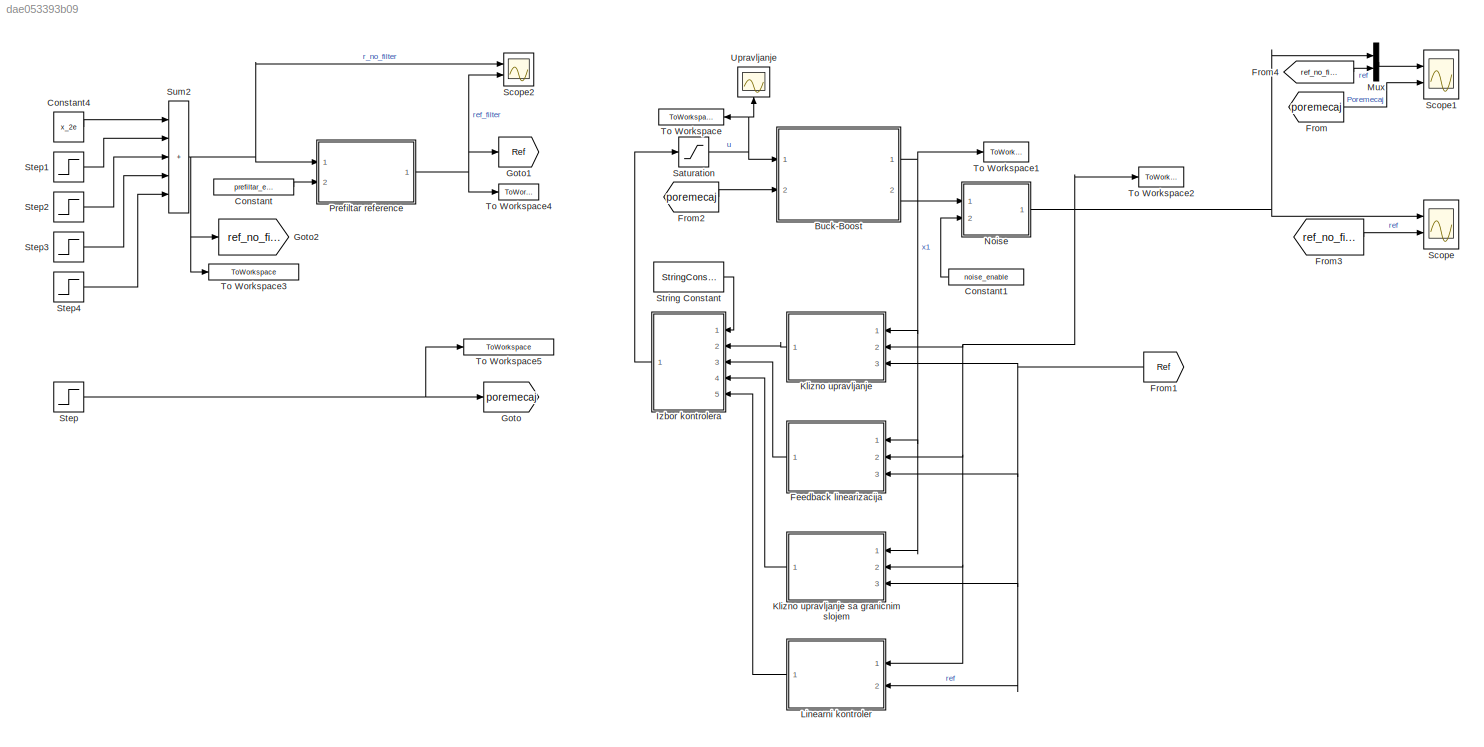
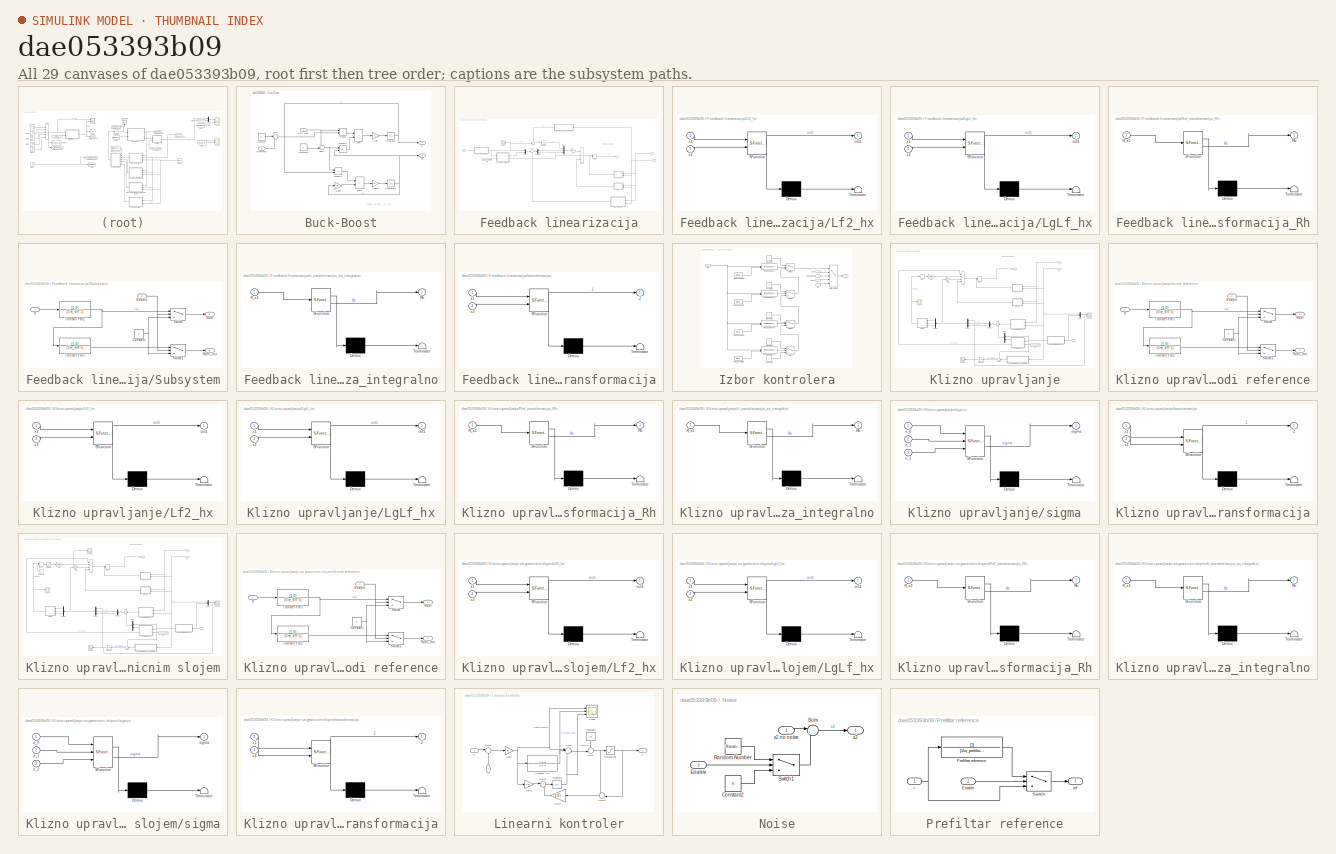
[diagram: thumbnail index - all 29 canvases of the model, root first then tree order]
MODEL slx_dae053393b09
KIND model
CONFIG AbsTol = auto
CONFIG EnableMultiTasking = off
CONFIG FixedStep = time_step
CONFIG MaxStep = auto
CONFIG MinStep = auto
CONFIG RelTol = 1e-3
CONFIG SampleTimeConstraint = Unconstrained
CONFIG Solver = FixedStepAuto
CONFIG SolverName = FixedStepAuto
CONFIG StartTime = 0.0
CONFIG StopTime = sim_duration
BLOCK [SubSystem] Buck-Boost
  Ports = [2, 2]
  RequestExecContextInheritance = off
BLOCK [Constant] Buck-Boost/Constant1
  Value = E
BLOCK [Constant] Buck-Boost/Constant2
BLOCK [Inport] Buck-Boost/Duty cycle
BLOCK [Gain] Buck-Boost/Gain
  Gain = 1/L
BLOCK [Gain] Buck-Boost/Gain1
  Gain = 1/C
BLOCK [Gain] Buck-Boost/Gain2
  Gain = 1/R
BLOCK [Integrator] Buck-Boost/Integrator
  InitialCondition = 1e-3
  Ports = [1, 1]
BLOCK [Integrator] Buck-Boost/Integrator1
  InitialCondition = -1e-3
  Ports = [1, 1]
BLOCK [Product] Buck-Boost/Product
  Ports = [2, 1]
BLOCK [Product] Buck-Boost/Product1
  Ports = [2, 1]
BLOCK [Product] Buck-Boost/Product2
  Ports = [2, 1]
BLOCK [Sum] Buck-Boost/Sum
  IconShape = rectangular
  Ports = [2, 1]
BLOCK [Sum] Buck-Boost/Sum1
  Inputs = -+|
  Ports = [2, 1]
BLOCK [Sum] Buck-Boost/Sum2
  IconShape = rectangular
  Inputs = --
  Ports = [2, 1]
BLOCK [Sum] Buck-Boost/Sum3
  Inputs = |++
  Ports = [2, 1]
BLOCK [Inport] Buck-Boost/poremecaj
  Port = 2
BLOCK [Outport] Buck-Boost/x1
BLOCK [Outport] Buck-Boost/x2
  Port = 2
BLOCK [Constant] Constant
  Value = prefiltar_enable
BLOCK [Constant] Constant1
  Value = noise_enable
BLOCK [Constant] Constant4
  Value = x_2e
BLOCK [SubSystem] Feedback linearizacija
  Ports = [3, 1]
  RequestExecContextInheritance = off
BLOCK [Demux] Feedback linearizacija/Demux
  Outputs = 2
  Ports = [1, 2]
BLOCK [Product] Feedback linearizacija/Divide
  Inputs = */
  Ports = [2, 1]
BLOCK [Constant] Feedback linearizacija/En
  Value = R_dot_enable
BLOCK [Gain] Feedback linearizacija/Gain
  Gain = K_fl
  Multiplication = Matrix(K*u)
  NameLocation = top
BLOCK [Integrator] Feedback linearizacija/Integrator
  Ports = [1, 1]
BLOCK [SubSystem] Feedback linearizacija/Lf2_hx
  ErrorFcn = Stateflow.Translate.translate
  PermitHierarchicalResolution = ExplicitOnly
  Ports = [2, 1]
  RequestExecContextInheritance = off
  SFBlockType = MATLAB Function
  TreatAsAtomicUnit = on
BLOCK [Demux] Feedback linearizacija/Lf2_hx/ Demux 
  Outputs = 1
  Ports = [1, 1]
BLOCK [S-Function] Feedback linearizacija/Lf2_hx/ SFunction 
  EnableBusSupport = on
  FunctionName = sf_sfun
  PortCounts = [2 2]
  Ports = [2, 2]
  SFcnIsStateOwnerBlock = off
  SFunctionDeploymentMode = off
  Tag = Stateflow S-Function 3
BLOCK [Terminator] Feedback linearizacija/Lf2_hx/ Terminator 
BLOCK [Outport] Feedback linearizacija/Lf2_hx/out1
BLOCK [Inport] Feedback linearizacija/Lf2_hx/x1
BLOCK [Inport] Feedback linearizacija/Lf2_hx/x2
  Port = 2
BLOCK [SubSystem] Feedback linearizacija/LgLf_hx
  ErrorFcn = Stateflow.Translate.translate
  PermitHierarchicalResolution = ExplicitOnly
  Ports = [2, 1]
  RequestExecContextInheritance = off
  SFBlockType = MATLAB Function
  TreatAsAtomicUnit = on
BLOCK [Demux] Feedback linearizacija/LgLf_hx/ Demux 
  Outputs = 1
  Ports = [1, 1]
BLOCK [S-Function] Feedback linearizacija/LgLf_hx/ SFunction 
  EnableBusSupport = on
  FunctionName = sf_sfun
  PortCounts = [2 2]
  Ports = [2, 2]
  SFcnIsStateOwnerBlock = off
  SFunctionDeploymentMode = off
  Tag = Stateflow S-Function 1
BLOCK [Terminator] Feedback linearizacija/LgLf_hx/ Terminator 
BLOCK [Outport] Feedback linearizacija/LgLf_hx/out1
BLOCK [Inport] Feedback linearizacija/LgLf_hx/x1
BLOCK [Inport] Feedback linearizacija/LgLf_hx/x2
  Port = 2
BLOCK [Mux] Feedback linearizacija/Mux
  DisplayOption = bar
  Inputs = 2
  Ports = [2, 1]
BLOCK [Mux] Feedback linearizacija/Mux1
  DisplayOption = bar
  Inputs = 3
  Ports = [3, 1]
BLOCK [Inport] Feedback linearizacija/R
  Port = 3
BLOCK [Scope] Feedback linearizacija/Ref h
  Floating = off
  NameLocation = top
  NumInputPorts = 1
  Ports = [1]
  ScopeSpecificationString = Simulink.scopes.TimeScopeBlockCfg('CurrentConfiguration', extmgr.ConfigurationSet(extmgr.Configuration('Core','General UI',true),extmgr.Configuration('Core','Source UI',true),extmgr.Configuration('Sources','WiredSimulink',true,'DataLoggingVariableName','ScopeData1'),extmgr.Configuration('Visuals','Time Domain',true,'SerializedDisplays',{struct('MinYLimReal','-0.64304','MaxYLimReal','0.6238','YLabe...<+1358ch>
BLOCK [SubSystem] Feedback linearizacija/Ref_transformacija_Rh
  ErrorFcn = Stateflow.Translate.translate
  PermitHierarchicalResolution = ExplicitOnly
  Ports = [1, 1]
  RequestExecContextInheritance = off
  SFBlockType = MATLAB Function
  TreatAsAtomicUnit = on
BLOCK [Demux] Feedback linearizacija/Ref_transformacija_Rh/ Demux 
  Outputs = 1
  Ports = [1, 1]
BLOCK [S-Function] Feedback linearizacija/Ref_transformacija_Rh/ SFunction 
  EnableBusSupport = on
  FunctionName = sf_sfun
  PortCounts = [1 2]
  Ports = [1, 2]
  SFcnIsStateOwnerBlock = off
  SFunctionDeploymentMode = off
  Tag = Stateflow S-Function 4
BLOCK [Terminator] Feedback linearizacija/Ref_transformacija_Rh/ Terminator 
BLOCK [Inport] Feedback linearizacija/Ref_transformacija_Rh/R_x2
BLOCK [Outport] Feedback linearizacija/Ref_transformacija_Rh/Rh
BLOCK [SubSystem] Feedback linearizacija/Subsystem
  Ports = [2, 2]
  RequestExecContextInheritance = off
BLOCK [Constant] Feedback linearizacija/Subsystem/Constant
  Value = 0
BLOCK [Inport] Feedback linearizacija/Subsystem/Enable
  NameLocation = top
  Port = 2
BLOCK [Inport] Feedback linearizacija/Subsystem/R
BLOCK [Outport] Feedback linearizacija/Subsystem/Rdot
BLOCK [Outport] Feedback linearizacija/Subsystem/Rdot_dot
  Port = 2
BLOCK [Switch] Feedback linearizacija/Subsystem/Switch
  Criteria = u2 ~= 0
  InputSameDT = off
  SaturateOnIntegerOverflow = off
BLOCK [Switch] Feedback linearizacija/Subsystem/Switch1
  Criteria = u2 ~= 0
  InputSameDT = off
  SaturateOnIntegerOverflow = off
BLOCK [TransferFcn] Feedback linearizacija/Subsystem/Transfer Fcn1
  Denominator = [1/w_diff 1]
  Numerator = [1 0]
BLOCK [TransferFcn] Feedback linearizacija/Subsystem/Transfer Fcn2
  Denominator = [1/w_diff 1]
  Numerator = [1 0]
BLOCK [Sum] Feedback linearizacija/Sum
  IconShape = rectangular
  Inputs = -+-
  Ports = [3, 1]
BLOCK [Sum] Feedback linearizacija/Sum1
  Inputs = |-+
  Ports = [2, 1]
BLOCK [Sum] Feedback linearizacija/Sum4
  Inputs = +-|
  Ports = [2, 1]
BLOCK [SubSystem] Feedback linearizacija/h_transformacija_za_integralno
  ErrorFcn = Stateflow.Translate.translate
  PermitHierarchicalResolution = ExplicitOnly
  Ports = [1, 1]
  RequestExecContextInheritance = off
  SFBlockType = MATLAB Function
  TreatAsAtomicUnit = on
BLOCK [Demux] Feedback linearizacija/h_transformacija_za_integralno/ Demux 
  Outputs = 1
  Ports = [1, 1]
BLOCK [S-Function] Feedback linearizacija/h_transformacija_za_integralno/ SFunction 
  EnableBusSupport = on
  FunctionName = sf_sfun
  PortCounts = [1 2]
  Ports = [1, 2]
  SFcnIsStateOwnerBlock = off
  SFunctionDeploymentMode = off
  Tag = Stateflow S-Function 5
BLOCK [Terminator] Feedback linearizacija/h_transformacija_za_integralno/ Terminator 
BLOCK [Inport] Feedback linearizacija/h_transformacija_za_integralno/R_x2
BLOCK [Outport] Feedback linearizacija/h_transformacija_za_integralno/Rh
BLOCK [SubSystem] Feedback linearizacija/transformacija
  ErrorFcn = Stateflow.Translate.translate
  PermitHierarchicalResolution = ExplicitOnly
  Ports = [2, 1]
  RequestExecContextInheritance = off
  SFBlockType = MATLAB Function
  TreatAsAtomicUnit = on
BLOCK [Demux] Feedback linearizacija/transformacija/ Demux 
  Outputs = 1
  Ports = [1, 1]
BLOCK [S-Function] Feedback linearizacija/transformacija/ SFunction 
  EnableBusSupport = on
  FunctionName = sf_sfun
  PortCounts = [2 2]
  Ports = [2, 2]
  SFcnIsStateOwnerBlock = off
  SFunctionDeploymentMode = off
  Tag = Stateflow S-Function 2
BLOCK [Terminator] Feedback linearizacija/transformacija/ Terminator 
BLOCK [Outport] Feedback linearizacija/transformacija/Z
BLOCK [Inport] Feedback linearizacija/transformacija/x1
BLOCK [Inport] Feedback linearizacija/transformacija/x2
  Port = 2
BLOCK [Outport] Feedback linearizacija/u
BLOCK [Inport] Feedback linearizacija/x1
BLOCK [Inport] Feedback linearizacija/x2
  Port = 2
BLOCK [From] From
  GotoTag = poremecaj
BLOCK [From] From1
  GotoTag = Ref
  TagVisibility = global
BLOCK [From] From2
  GotoTag = poremecaj
BLOCK [From] From3
  GotoTag = ref_no_filter
BLOCK [From] From4
  GotoTag = ref_no_filter
BLOCK [Goto] Goto
  GotoTag = poremecaj
BLOCK [Goto] Goto1
  GotoTag = Ref
  TagVisibility = global
BLOCK [Goto] Goto2
  GotoTag = ref_no_filter
BLOCK [SubSystem] Izbor kontrolera
  Ports = [5, 1]
  RequestExecContextInheritance = off
BLOCK [Constant] Izbor kontrolera/Constant1
BLOCK [Constant] Izbor kontrolera/Constant2
  Value = 2
BLOCK [Constant] Izbor kontrolera/Constant3
  Value = 4
BLOCK [Constant] Izbor kontrolera/Constant4
  Value = 3
BLOCK [Constant] Izbor kontrolera/Constant6
  Value = 0
BLOCK [MultiPortSwitch] Izbor kontrolera/Multiport Switch
  InputSameDT = off
  Inputs = 4
  Ports = [5, 1]
  SaturateOnIntegerOverflow = off
BLOCK [StringCompare] Izbor kontrolera/String Compare
BLOCK [StringCompare] Izbor kontrolera/String Compare1
BLOCK [StringCompare] Izbor kontrolera/String Compare2
BLOCK [StringCompare] Izbor kontrolera/String Compare3
BLOCK [StringConstant] Izbor kontrolera/String Constant1
  String = "smc"
BLOCK [StringConstant] Izbor kontrolera/String Constant2
  String = "bl smc"
BLOCK [StringConstant] Izbor kontrolera/String Constant3
  String = "fbl"
BLOCK [StringConstant] Izbor kontrolera/String Constant4
  String = "lin"
BLOCK [Switch] Izbor kontrolera/Switch1
  Criteria = u2 > Threshold
  InputSameDT = off
  SaturateOnIntegerOverflow = off
BLOCK [Switch] Izbor kontrolera/Switch2
  Criteria = u2 > Threshold
  InputSameDT = off
  SaturateOnIntegerOverflow = off
BLOCK [Switch] Izbor kontrolera/Switch3
  Criteria = u2 > Threshold
  InputSameDT = off
  SaturateOnIntegerOverflow = off
BLOCK [Switch] Izbor kontrolera/Switch4
  Criteria = u2 > Threshold
  InputSameDT = off
  SaturateOnIntegerOverflow = off
BLOCK [Inport] Izbor kontrolera/bl smc
  NameLocation = left
  Port = 4
BLOCK [Inport] Izbor kontrolera/feedback lin
  NameLocation = left
  Port = 3
BLOCK [Inport] Izbor kontrolera/ime
BLOCK [Inport] Izbor kontrolera/lin
  NameLocation = left
  Port = 5
BLOCK [Inport] Izbor kontrolera/smc
  NameLocation = left
  Port = 2
BLOCK [Outport] Izbor kontrolera/u
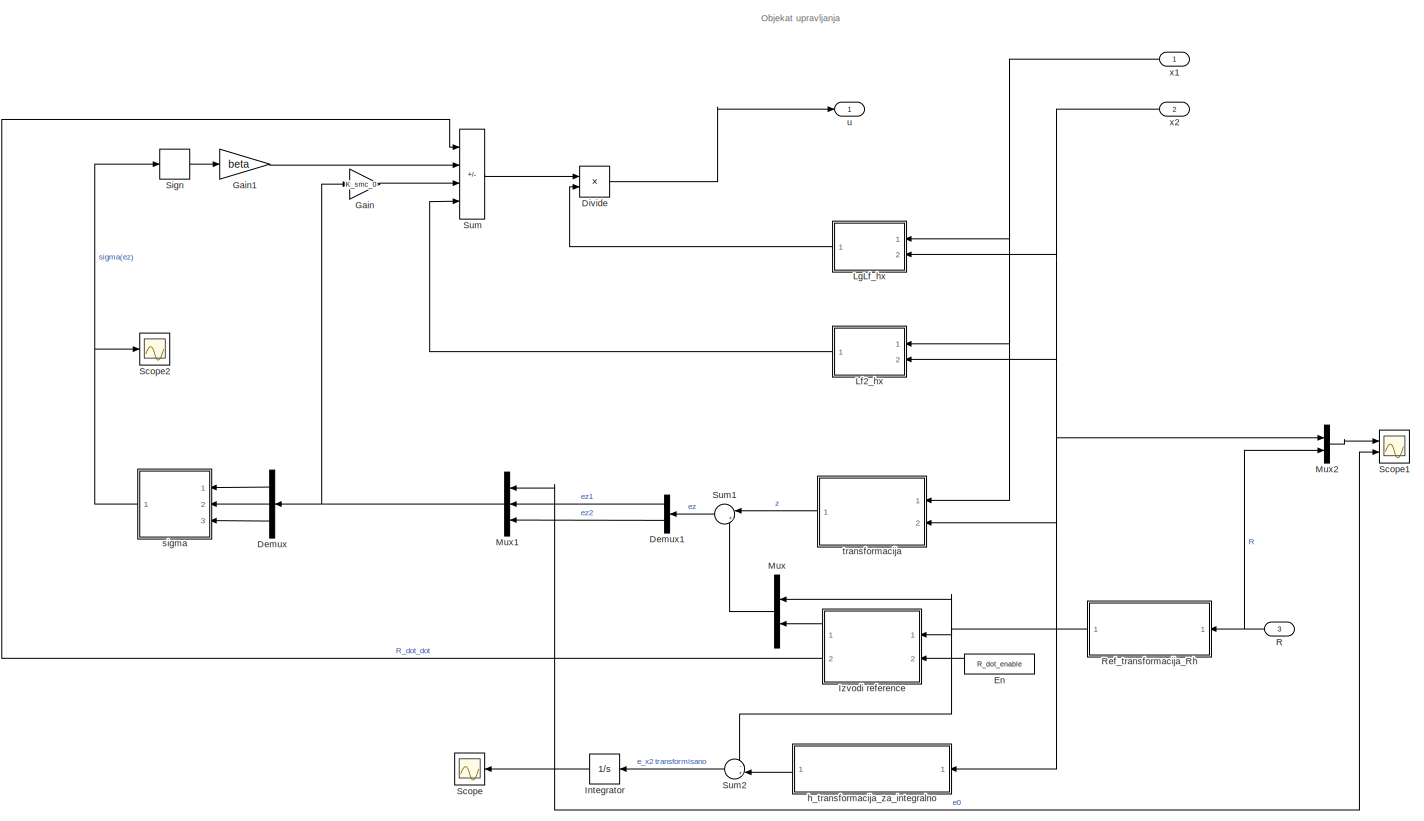
[diagram: Klizno upravljanje - part 1/1, most of the canvas]
BLOCK [SubSystem] Klizno upravljanje
  Ports = [3, 1]
  RequestExecContextInheritance = off
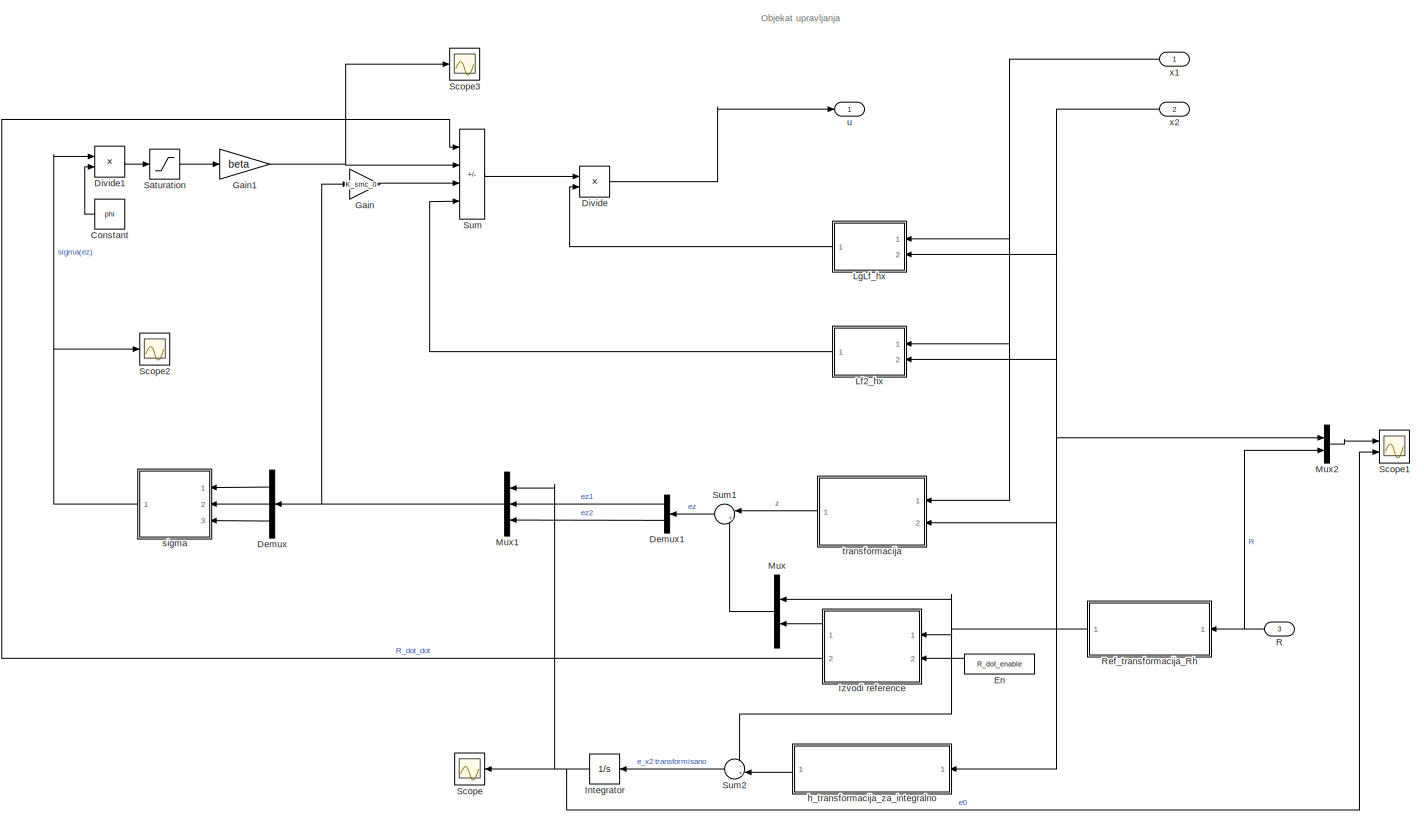
[diagram: Klizno upravljanje sa granicnim slojem - part 1/1, most of the canvas]
BLOCK [SubSystem] Klizno upravljanje sa granicnim slojem
  Ports = [3, 1]
  RequestExecContextInheritance = off
BLOCK [Constant] Klizno upravljanje sa granicnim slojem/Constant
  Value = phi
BLOCK [Demux] Klizno upravljanje sa granicnim slojem/Demux
  Outputs = 3
  Ports = [1, 3]
BLOCK [Demux] Klizno upravljanje sa granicnim slojem/Demux1
  Outputs = 2
  Ports = [1, 2]
BLOCK [Product] Klizno upravljanje sa granicnim slojem/Divide
  Inputs = */
  Ports = [2, 1]
BLOCK [Product] Klizno upravljanje sa granicnim slojem/Divide1
  Inputs = */
  Ports = [2, 1]
BLOCK [Constant] Klizno upravljanje sa granicnim slojem/En
  Value = R_dot_enable
BLOCK [Gain] Klizno upravljanje sa granicnim slojem/Gain
  Gain = K_smc_0
  Multiplication = Matrix(K*u)
  NameLocation = top
BLOCK [Gain] Klizno upravljanje sa granicnim slojem/Gain1
  Gain = beta
BLOCK [Integrator] Klizno upravljanje sa granicnim slojem/Integrator
  Ports = [1, 1]
BLOCK [SubSystem] Klizno upravljanje sa granicnim slojem/Izvodi reference
  Ports = [2, 2]
  RequestExecContextInheritance = off
BLOCK [Constant] Klizno upravljanje sa granicnim slojem/Izvodi reference/Constant
  Value = 0
BLOCK [Inport] Klizno upravljanje sa granicnim slojem/Izvodi reference/Enable
  NameLocation = top
  Port = 2
BLOCK [Inport] Klizno upravljanje sa granicnim slojem/Izvodi reference/R
BLOCK [Outport] Klizno upravljanje sa granicnim slojem/Izvodi reference/Rdot
BLOCK [Outport] Klizno upravljanje sa granicnim slojem/Izvodi reference/Rdot_dot
  Port = 2
BLOCK [Switch] Klizno upravljanje sa granicnim slojem/Izvodi reference/Switch
  Criteria = u2 ~= 0
  InputSameDT = off
  SaturateOnIntegerOverflow = off
BLOCK [Switch] Klizno upravljanje sa granicnim slojem/Izvodi reference/Switch1
  Criteria = u2 ~= 0
  InputSameDT = off
  SaturateOnIntegerOverflow = off
BLOCK [TransferFcn] Klizno upravljanje sa granicnim slojem/Izvodi reference/Transfer Fcn1
  Denominator = [1/w_diff 1]
  Numerator = [1 0]
BLOCK [TransferFcn] Klizno upravljanje sa granicnim slojem/Izvodi reference/Transfer Fcn2
  Denominator = [1/w_diff 1]
  Numerator = [1 0]
BLOCK [SubSystem] Klizno upravljanje sa granicnim slojem/Lf2_hx
  ErrorFcn = Stateflow.Translate.translate
  PermitHierarchicalResolution = ExplicitOnly
  Ports = [2, 1]
  RequestExecContextInheritance = off
  SFBlockType = MATLAB Function
  TreatAsAtomicUnit = on
BLOCK [Demux] Klizno upravljanje sa granicnim slojem/Lf2_hx/ Demux 
  Outputs = 1
  Ports = [1, 1]
BLOCK [S-Function] Klizno upravljanje sa granicnim slojem/Lf2_hx/ SFunction 
  EnableBusSupport = on
  FunctionName = sf_sfun
  PortCounts = [2 2]
  Ports = [2, 2]
  SFcnIsStateOwnerBlock = off
  SFunctionDeploymentMode = off
  Tag = Stateflow S-Function 12
BLOCK [Terminator] Klizno upravljanje sa granicnim slojem/Lf2_hx/ Terminator 
BLOCK [Outport] Klizno upravljanje sa granicnim slojem/Lf2_hx/out1
BLOCK [Inport] Klizno upravljanje sa granicnim slojem/Lf2_hx/x1
BLOCK [Inport] Klizno upravljanje sa granicnim slojem/Lf2_hx/x2
  Port = 2
BLOCK [SubSystem] Klizno upravljanje sa granicnim slojem/LgLf_hx
  ErrorFcn = Stateflow.Translate.translate
  PermitHierarchicalResolution = ExplicitOnly
  Ports = [2, 1]
  RequestExecContextInheritance = off
  SFBlockType = MATLAB Function
  TreatAsAtomicUnit = on
BLOCK [Demux] Klizno upravljanje sa granicnim slojem/LgLf_hx/ Demux 
  Outputs = 1
  Ports = [1, 1]
BLOCK [S-Function] Klizno upravljanje sa granicnim slojem/LgLf_hx/ SFunction 
  EnableBusSupport = on
  FunctionName = sf_sfun
  PortCounts = [2 2]
  Ports = [2, 2]
  SFcnIsStateOwnerBlock = off
  SFunctionDeploymentMode = off
  Tag = Stateflow S-Function 13
BLOCK [Terminator] Klizno upravljanje sa granicnim slojem/LgLf_hx/ Terminator 
BLOCK [Outport] Klizno upravljanje sa granicnim slojem/LgLf_hx/out1
BLOCK [Inport] Klizno upravljanje sa granicnim slojem/LgLf_hx/x1
BLOCK [Inport] Klizno upravljanje sa granicnim slojem/LgLf_hx/x2
  Port = 2
BLOCK [Mux] Klizno upravljanje sa granicnim slojem/Mux
  DisplayOption = bar
  Inputs = 2
  Ports = [2, 1]
BLOCK [Mux] Klizno upravljanje sa granicnim slojem/Mux1
  DisplayOption = bar
  Inputs = 3
  Ports = [3, 1]
BLOCK [Mux] Klizno upravljanje sa granicnim slojem/Mux2
  DisplayOption = bar
  Inputs = 2
  Ports = [2, 1]
BLOCK [Inport] Klizno upravljanje sa granicnim slojem/R
  NameLocation = top
  Port = 3
BLOCK [SubSystem] Klizno upravljanje sa granicnim slojem/Ref_transformacija_Rh
  ErrorFcn = Stateflow.Translate.translate
  PermitHierarchicalResolution = ExplicitOnly
  Ports = [1, 1]
  RequestExecContextInheritance = off
  SFBlockType = MATLAB Function
  TreatAsAtomicUnit = on
BLOCK [Demux] Klizno upravljanje sa granicnim slojem/Ref_transformacija_Rh/ Demux 
  Outputs = 1
  Ports = [1, 1]
BLOCK [S-Function] Klizno upravljanje sa granicnim slojem/Ref_transformacija_Rh/ SFunction 
  EnableBusSupport = on
  FunctionName = sf_sfun
  PortCounts = [1 2]
  Ports = [1, 2]
  SFcnIsStateOwnerBlock = off
  SFunctionDeploymentMode = off
  Tag = Stateflow S-Function 14
BLOCK [Terminator] Klizno upravljanje sa granicnim slojem/Ref_transformacija_Rh/ Terminator 
BLOCK [Inport] Klizno upravljanje sa granicnim slojem/Ref_transformacija_Rh/R_x2
BLOCK [Outport] Klizno upravljanje sa granicnim slojem/Ref_transformacija_Rh/Rh
BLOCK [Saturate] Klizno upravljanje sa granicnim slojem/Saturation
  LowerLimit = -1
  UpperLimit = 1
BLOCK [Scope] Klizno upravljanje sa granicnim slojem/Scope
  Floating = off
  NumInputPorts = 1
  Ports = [1]
  ScopeSpecificationString = Simulink.scopes.TimeScopeBlockCfg('CurrentConfiguration', extmgr.ConfigurationSet(extmgr.Configuration('Core','General UI',true),extmgr.Configuration('Core','Source UI',true),extmgr.Configuration('Sources','WiredSimulink',true,'DataLoggingVariableName','ScopeData1'),extmgr.Configuration('Visuals','Time Domain',true,'SerializedDisplays',{struct('MinYLimReal','-0.00121','MaxYLimReal','0.00076','YLab...<+1419ch>
BLOCK [Scope] Klizno upravljanje sa granicnim slojem/Scope1
  Floating = off
  NumInputPorts = 2
  Ports = [2]
  ScopeSpecificationString = Simulink.scopes.TimeScopeBlockCfg('CurrentConfiguration', extmgr.ConfigurationSet(extmgr.Configuration('Core','General UI',true),extmgr.Configuration('Core','Source UI',true),extmgr.Configuration('Sources','WiredSimulink',true,'DataLoggingVariableName','ScopeData2'),extmgr.Configuration('Visuals','Time Domain',true,'SerializedDisplays',{struct('MinYLimReal','-40.02508','MaxYLimReal','4.44723','YLa...<+2080ch>
BLOCK [Scope] Klizno upravljanje sa granicnim slojem/Scope2
  Floating = off
  NumInputPorts = 1
  Ports = [1]
  ScopeSpecificationString = Simulink.scopes.TimeScopeBlockCfg('CurrentConfiguration', extmgr.ConfigurationSet(extmgr.Configuration('Core','General UI',true),extmgr.Configuration('Core','Source UI',true),extmgr.Configuration('Sources','WiredSimulink',true,'DataLoggingVariableName','ScopeData3'),extmgr.Configuration('Visuals','Time Domain',true,'SerializedDisplays',{struct('MinYLimReal','-239.05096','MaxYLimReal','1747.78963',...<+1430ch>
BLOCK [Scope] Klizno upravljanje sa granicnim slojem/Scope3
  Floating = off
  NumInputPorts = 1
  Ports = [1]
  ScopeSpecificationString = Simulink.scopes.TimeScopeBlockCfg('CurrentConfiguration', extmgr.ConfigurationSet(extmgr.Configuration('Core','General UI',true),extmgr.Configuration('Core','Source UI',true),extmgr.Configuration('Sources','WiredSimulink',true,'DataLoggingVariableName','ScopeData1'),extmgr.Configuration('Visuals','Time Domain',true,'SerializedDisplays',{struct('MinYLimReal','-12500.00000','MaxYLimReal','12500.0000...<+1419ch>
BLOCK [Sum] Klizno upravljanje sa granicnim slojem/Sum
  IconShape = rectangular
  Inputs = +---
  Ports = [4, 1]
BLOCK [Sum] Klizno upravljanje sa granicnim slojem/Sum1
  Inputs = |+-
  Ports = [2, 1]
BLOCK [Sum] Klizno upravljanje sa granicnim slojem/Sum2
  Inputs = -+|
  Ports = [2, 1]
BLOCK [SubSystem] Klizno upravljanje sa granicnim slojem/h_transformacija_za_integralno
  ErrorFcn = Stateflow.Translate.translate
  PermitHierarchicalResolution = ExplicitOnly
  Ports = [1, 1]
  RequestExecContextInheritance = off
  SFBlockType = MATLAB Function
  TreatAsAtomicUnit = on
BLOCK [Demux] Klizno upravljanje sa granicnim slojem/h_transformacija_za_integralno/ Demux 
  Outputs = 1
  Ports = [1, 1]
BLOCK [S-Function] Klizno upravljanje sa granicnim slojem/h_transformacija_za_integralno/ SFunction 
  EnableBusSupport = on
  FunctionName = sf_sfun
  PortCounts = [1 2]
  Ports = [1, 2]
  SFcnIsStateOwnerBlock = off
  SFunctionDeploymentMode = off
  Tag = Stateflow S-Function 15
BLOCK [Terminator] Klizno upravljanje sa granicnim slojem/h_transformacija_za_integralno/ Terminator 
BLOCK [Inport] Klizno upravljanje sa granicnim slojem/h_transformacija_za_integralno/R_x2
BLOCK [Outport] Klizno upravljanje sa granicnim slojem/h_transformacija_za_integralno/Rh
BLOCK [SubSystem] Klizno upravljanje sa granicnim slojem/sigma
  ErrorFcn = Stateflow.Translate.translate
  PermitHierarchicalResolution = ExplicitOnly
  Ports = [3, 1]
  RequestExecContextInheritance = off
  SFBlockType = MATLAB Function
  TreatAsAtomicUnit = on
BLOCK [Demux] Klizno upravljanje sa granicnim slojem/sigma/ Demux 
  Outputs = 1
  Ports = [1, 1]
BLOCK [S-Function] Klizno upravljanje sa granicnim slojem/sigma/ SFunction 
  EnableBusSupport = on
  FunctionName = sf_sfun
  PortCounts = [3 2]
  Ports = [3, 2]
  SFcnIsStateOwnerBlock = off
  SFunctionDeploymentMode = off
  Tag = Stateflow S-Function 16
BLOCK [Terminator] Klizno upravljanje sa granicnim slojem/sigma/ Terminator 
BLOCK [Inport] Klizno upravljanje sa granicnim slojem/sigma/e_0
BLOCK [Inport] Klizno upravljanje sa granicnim slojem/sigma/e_1
  Port = 2
BLOCK [Inport] Klizno upravljanje sa granicnim slojem/sigma/e_2
  Port = 3
BLOCK [Outport] Klizno upravljanje sa granicnim slojem/sigma/sigma
BLOCK [SubSystem] Klizno upravljanje sa granicnim slojem/transformacija
  ErrorFcn = Stateflow.Translate.translate
  PermitHierarchicalResolution = ExplicitOnly
  Ports = [2, 1]
  RequestExecContextInheritance = off
  SFBlockType = MATLAB Function
  TreatAsAtomicUnit = on
BLOCK [Demux] Klizno upravljanje sa granicnim slojem/transformacija/ Demux 
  Outputs = 1
  Ports = [1, 1]
BLOCK [S-Function] Klizno upravljanje sa granicnim slojem/transformacija/ SFunction 
  EnableBusSupport = on
  FunctionName = sf_sfun
  PortCounts = [2 2]
  Ports = [2, 2]
  SFcnIsStateOwnerBlock = off
  SFunctionDeploymentMode = off
  Tag = Stateflow S-Function 17
BLOCK [Terminator] Klizno upravljanje sa granicnim slojem/transformacija/ Terminator 
BLOCK [Outport] Klizno upravljanje sa granicnim slojem/transformacija/Z
BLOCK [Inport] Klizno upravljanje sa granicnim slojem/transformacija/x1
BLOCK [Inport] Klizno upravljanje sa granicnim slojem/transformacija/x2
  Port = 2
BLOCK [Outport] Klizno upravljanje sa granicnim slojem/u
BLOCK [Inport] Klizno upravljanje sa granicnim slojem/x1
BLOCK [Inport] Klizno upravljanje sa granicnim slojem/x2
  Port = 2
BLOCK [Demux] Klizno upravljanje/Demux
  Outputs = 3
  Ports = [1, 3]
BLOCK [Demux] Klizno upravljanje/Demux1
  Outputs = 2
  Ports = [1, 2]
BLOCK [Product] Klizno upravljanje/Divide
  Inputs = */
  Ports = [2, 1]
BLOCK [Constant] Klizno upravljanje/En
  Value = R_dot_enable
BLOCK [Gain] Klizno upravljanje/Gain
  Gain = K_smc_0
  Multiplication = Matrix(K*u)
  NameLocation = top
BLOCK [Gain] Klizno upravljanje/Gain1
  Gain = beta
BLOCK [Integrator] Klizno upravljanje/Integrator
  Ports = [1, 1]
BLOCK [SubSystem] Klizno upravljanje/Izvodi reference
  Ports = [2, 2]
  RequestExecContextInheritance = off
BLOCK [Constant] Klizno upravljanje/Izvodi reference/Constant
  Value = 0
BLOCK [Inport] Klizno upravljanje/Izvodi reference/Enable
  NameLocation = top
  Port = 2
BLOCK [Inport] Klizno upravljanje/Izvodi reference/R
BLOCK [Outport] Klizno upravljanje/Izvodi reference/Rdot
BLOCK [Outport] Klizno upravljanje/Izvodi reference/Rdot_dot
  Port = 2
BLOCK [Switch] Klizno upravljanje/Izvodi reference/Switch
  Criteria = u2 ~= 0
  InputSameDT = off
  SaturateOnIntegerOverflow = off
BLOCK [Switch] Klizno upravljanje/Izvodi reference/Switch1
  Criteria = u2 ~= 0
  InputSameDT = off
  SaturateOnIntegerOverflow = off
BLOCK [TransferFcn] Klizno upravljanje/Izvodi reference/Transfer Fcn1
  Denominator = [1/w_diff 1]
  Numerator = [1 0]
BLOCK [TransferFcn] Klizno upravljanje/Izvodi reference/Transfer Fcn2
  Denominator = [1/w_diff 1]
  Numerator = [1 0]
BLOCK [SubSystem] Klizno upravljanje/Lf2_hx
  ErrorFcn = Stateflow.Translate.translate
  PermitHierarchicalResolution = ExplicitOnly
  Ports = [2, 1]
  RequestExecContextInheritance = off
  SFBlockType = MATLAB Function
  TreatAsAtomicUnit = on
BLOCK [Demux] Klizno upravljanje/Lf2_hx/ Demux 
  Outputs = 1
  Ports = [1, 1]
BLOCK [S-Function] Klizno upravljanje/Lf2_hx/ SFunction 
  EnableBusSupport = on
  FunctionName = sf_sfun
  PortCounts = [2 2]
  Ports = [2, 2]
  SFcnIsStateOwnerBlock = off
  SFunctionDeploymentMode = off
  Tag = Stateflow S-Function 8
BLOCK [Terminator] Klizno upravljanje/Lf2_hx/ Terminator 
BLOCK [Outport] Klizno upravljanje/Lf2_hx/out1
BLOCK [Inport] Klizno upravljanje/Lf2_hx/x1
BLOCK [Inport] Klizno upravljanje/Lf2_hx/x2
  Port = 2
BLOCK [SubSystem] Klizno upravljanje/LgLf_hx
  ErrorFcn = Stateflow.Translate.translate
  PermitHierarchicalResolution = ExplicitOnly
  Ports = [2, 1]
  RequestExecContextInheritance = off
  SFBlockType = MATLAB Function
  TreatAsAtomicUnit = on
BLOCK [Demux] Klizno upravljanje/LgLf_hx/ Demux 
  Outputs = 1
  Ports = [1, 1]
BLOCK [S-Function] Klizno upravljanje/LgLf_hx/ SFunction 
  EnableBusSupport = on
  FunctionName = sf_sfun
  PortCounts = [2 2]
  Ports = [2, 2]
  SFcnIsStateOwnerBlock = off
  SFunctionDeploymentMode = off
  Tag = Stateflow S-Function 7
BLOCK [Terminator] Klizno upravljanje/LgLf_hx/ Terminator 
BLOCK [Outport] Klizno upravljanje/LgLf_hx/out1
BLOCK [Inport] Klizno upravljanje/LgLf_hx/x1
BLOCK [Inport] Klizno upravljanje/LgLf_hx/x2
  Port = 2
BLOCK [Mux] Klizno upravljanje/Mux
  DisplayOption = bar
  Inputs = 2
  Ports = [2, 1]
BLOCK [Mux] Klizno upravljanje/Mux1
  DisplayOption = bar
  Inputs = 3
  Ports = [3, 1]
BLOCK [Mux] Klizno upravljanje/Mux2
  DisplayOption = bar
  Inputs = 2
  Ports = [2, 1]
BLOCK [Inport] Klizno upravljanje/R
  NameLocation = top
  Port = 3
BLOCK [SubSystem] Klizno upravljanje/Ref_transformacija_Rh
  ErrorFcn = Stateflow.Translate.translate
  PermitHierarchicalResolution = ExplicitOnly
  Ports = [1, 1]
  RequestExecContextInheritance = off
  SFBlockType = MATLAB Function
  TreatAsAtomicUnit = on
BLOCK [Demux] Klizno upravljanje/Ref_transformacija_Rh/ Demux 
  Outputs = 1
  Ports = [1, 1]
BLOCK [S-Function] Klizno upravljanje/Ref_transformacija_Rh/ SFunction 
  EnableBusSupport = on
  FunctionName = sf_sfun
  PortCounts = [1 2]
  Ports = [1, 2]
  SFcnIsStateOwnerBlock = off
  SFunctionDeploymentMode = off
  Tag = Stateflow S-Function 10
BLOCK [Terminator] Klizno upravljanje/Ref_transformacija_Rh/ Terminator 
BLOCK [Inport] Klizno upravljanje/Ref_transformacija_Rh/R_x2
BLOCK [Outport] Klizno upravljanje/Ref_transformacija_Rh/Rh
BLOCK [Scope] Klizno upravljanje/Scope
  Floating = off
  NumInputPorts = 1
  Ports = [1]
  ScopeSpecificationString = Simulink.scopes.TimeScopeBlockCfg('CurrentConfiguration', extmgr.ConfigurationSet(extmgr.Configuration('Core','General UI',true),extmgr.Configuration('Core','Source UI',true),extmgr.Configuration('Sources','WiredSimulink',true,'DataLoggingVariableName','ScopeData1'),extmgr.Configuration('Visuals','Time Domain',true,'SerializedDisplays',{struct('MinYLimReal','-0.00121','MaxYLimReal','0.00076','YLab...<+1419ch>
BLOCK [Scope] Klizno upravljanje/Scope1
  Floating = off
  NumInputPorts = 2
  Ports = [2]
  ScopeSpecificationString = Simulink.scopes.TimeScopeBlockCfg('CurrentConfiguration', extmgr.ConfigurationSet(extmgr.Configuration('Core','General UI',true),extmgr.Configuration('Core','Source UI',true),extmgr.Configuration('Sources','WiredSimulink',true,'DataLoggingVariableName','ScopeData2'),extmgr.Configuration('Visuals','Time Domain',true,'SerializedDisplays',{struct('MinYLimReal','-40.02508','MaxYLimReal','4.44723','YLa...<+2080ch>
BLOCK [Scope] Klizno upravljanje/Scope2
  Floating = off
  NumInputPorts = 1
  Ports = [1]
  ScopeSpecificationString = Simulink.scopes.TimeScopeBlockCfg('CurrentConfiguration', extmgr.ConfigurationSet(extmgr.Configuration('Core','General UI',true),extmgr.Configuration('Core','Source UI',true),extmgr.Configuration('Sources','WiredSimulink',true,'DataLoggingVariableName','ScopeData3'),extmgr.Configuration('Visuals','Time Domain',true,'SerializedDisplays',{struct('MinYLimReal','-239.05096','MaxYLimReal','1747.78963',...<+1430ch>
BLOCK [Signum] Klizno upravljanje/Sign
BLOCK [Sum] Klizno upravljanje/Sum
  IconShape = rectangular
  Inputs = +---
  Ports = [4, 1]
BLOCK [Sum] Klizno upravljanje/Sum1
  Inputs = |+-
  Ports = [2, 1]
BLOCK [Sum] Klizno upravljanje/Sum2
  Inputs = -+|
  Ports = [2, 1]
BLOCK [SubSystem] Klizno upravljanje/h_transformacija_za_integralno
  ErrorFcn = Stateflow.Translate.translate
  PermitHierarchicalResolution = ExplicitOnly
  Ports = [1, 1]
  RequestExecContextInheritance = off
  SFBlockType = MATLAB Function
  TreatAsAtomicUnit = on
BLOCK [Demux] Klizno upravljanje/h_transformacija_za_integralno/ Demux 
  Outputs = 1
  Ports = [1, 1]
BLOCK [S-Function] Klizno upravljanje/h_transformacija_za_integralno/ SFunction 
  EnableBusSupport = on
  FunctionName = sf_sfun
  PortCounts = [1 2]
  Ports = [1, 2]
  SFcnIsStateOwnerBlock = off
  SFunctionDeploymentMode = off
  Tag = Stateflow S-Function 11
BLOCK [Terminator] Klizno upravljanje/h_transformacija_za_integralno/ Terminator 
BLOCK [Inport] Klizno upravljanje/h_transformacija_za_integralno/R_x2
BLOCK [Outport] Klizno upravljanje/h_transformacija_za_integralno/Rh
BLOCK [SubSystem] Klizno upravljanje/sigma
  ErrorFcn = Stateflow.Translate.translate
  PermitHierarchicalResolution = ExplicitOnly
  Ports = [3, 1]
  RequestExecContextInheritance = off
  SFBlockType = MATLAB Function
  TreatAsAtomicUnit = on
BLOCK [Demux] Klizno upravljanje/sigma/ Demux 
  Outputs = 1
  Ports = [1, 1]
BLOCK [S-Function] Klizno upravljanje/sigma/ SFunction 
  EnableBusSupport = on
  FunctionName = sf_sfun
  PortCounts = [3 2]
  Ports = [3, 2]
  SFcnIsStateOwnerBlock = off
  SFunctionDeploymentMode = off
  Tag = Stateflow S-Function 9
BLOCK [Terminator] Klizno upravljanje/sigma/ Terminator 
BLOCK [Inport] Klizno upravljanje/sigma/e_0
BLOCK [Inport] Klizno upravljanje/sigma/e_1
  Port = 2
BLOCK [Inport] Klizno upravljanje/sigma/e_2
  Port = 3
BLOCK [Outport] Klizno upravljanje/sigma/sigma
BLOCK [SubSystem] Klizno upravljanje/transformacija
  ErrorFcn = Stateflow.Translate.translate
  PermitHierarchicalResolution = ExplicitOnly
  Ports = [2, 1]
  RequestExecContextInheritance = off
  SFBlockType = MATLAB Function
  TreatAsAtomicUnit = on
BLOCK [Demux] Klizno upravljanje/transformacija/ Demux 
  Outputs = 1
  Ports = [1, 1]
BLOCK [S-Function] Klizno upravljanje/transformacija/ SFunction 
  EnableBusSupport = on
  FunctionName = sf_sfun
  PortCounts = [2 2]
  Ports = [2, 2]
  SFcnIsStateOwnerBlock = off
  SFunctionDeploymentMode = off
  Tag = Stateflow S-Function 6
BLOCK [Terminator] Klizno upravljanje/transformacija/ Terminator 
BLOCK [Outport] Klizno upravljanje/transformacija/Z
BLOCK [Inport] Klizno upravljanje/transformacija/x1
BLOCK [Inport] Klizno upravljanje/transformacija/x2
  Port = 2
BLOCK [Outport] Klizno upravljanje/u
BLOCK [Inport] Klizno upravljanje/x1
BLOCK [Inport] Klizno upravljanje/x2
  Port = 2
BLOCK [SubSystem] Linearni kontroler
  Commented = on
  Ports = [2, 1]
  RequestExecContextInheritance = off
BLOCK [Constant] Linearni kontroler/Constant2
  NameLocation = left
  Value = ue
BLOCK [Gain] Linearni kontroler/Gain
  Gain = Kp
BLOCK [Gain] Linearni kontroler/Gain1
  Gain = 1/Ti
BLOCK [Gain] Linearni kontroler/Gain2
  Gain = 1/Tt
  NameLocation = top
BLOCK [Integrator] Linearni kontroler/Integrator
  Ports = [1, 1]
BLOCK [Inport] Linearni kontroler/R
  Port = 2
BLOCK [Saturate] Linearni kontroler/Saturation2
  LowerLimit = 0
  UpperLimit = 1
BLOCK [Scope] Linearni kontroler/Scope
  Floating = off
  NumInputPorts = 3
  Ports = [3]
  ScopeSpecificationString = Simulink.scopes.TimeScopeBlockCfg('CurrentConfiguration', extmgr.ConfigurationSet(extmgr.Configuration('Core','General UI',true),extmgr.Configuration('Core','Source UI',true),extmgr.Configuration('Sources','WiredSimulink',true,'DataLoggingVariableName','ScopeData2'),extmgr.Configuration('Visuals','Time Domain',true,'SerializedDisplays',{struct('MinYLimReal','-0.31082','MaxYLimReal','0.37646','YLab...<+1474ch>
BLOCK [Sum] Linearni kontroler/Sum
  Inputs = |+++
  Ports = [3, 1]
BLOCK [Sum] Linearni kontroler/Sum1
  Inputs = ++|
  Ports = [2, 1]
BLOCK [Sum] Linearni kontroler/Sum11
  Inputs = |++
  Ports = [2, 1]
BLOCK [Sum] Linearni kontroler/Sum12
  Inputs = -+|
  Ports = [2, 1]
BLOCK [Sum] Linearni kontroler/Sum3
  Inputs = |+-
  Ports = [2, 1]
BLOCK [TransferFcn] Linearni kontroler/Transfer Fcn
  Denominator = [Tf 1]
  Numerator = [Td 0]
BLOCK [Outport] Linearni kontroler/u
BLOCK [Inport] Linearni kontroler/y
  NameLocation = left
BLOCK [Mux] Mux
  DisplayOption = bar
  Inputs = 2
  Ports = [2, 1]
BLOCK [SubSystem] Noise
  Ports = [2, 1]
  RequestExecContextInheritance = off
BLOCK [Constant] Noise/Constant2
  Value = 0
BLOCK [Inport] Noise/Enable
  Port = 2
BLOCK [RandomNumber] Noise/Random Number
  SampleTime = time_step
  Variance = sigma_noise^2
BLOCK [Sum] Noise/Sum
  Inputs = |++
  Ports = [2, 1]
BLOCK [Switch] Noise/Switch1
  Criteria = u2 > Threshold
  InputSameDT = off
  SaturateOnIntegerOverflow = off
BLOCK [Outport] Noise/x2
BLOCK [Inport] Noise/x2 no noise
BLOCK [SubSystem] Prefiltar reference
  Ports = [2, 1]
  RequestExecContextInheritance = off
BLOCK [Inport] Prefiltar reference/Enable
  Port = 2
BLOCK [TransferFcn] Prefiltar reference/Prefiltar reference
  Denominator = [1/w_prefiltar 1]
  NameLocation = top
BLOCK [Switch] Prefiltar reference/Switch
  Criteria = u2 ~= 0
  InputSameDT = off
  SaturateOnIntegerOverflow = off
BLOCK [Inport] Prefiltar reference/r
BLOCK [Outport] Prefiltar reference/ref
BLOCK [Saturate] Saturation
  LowerLimit = 0
  UpperLimit = 1
BLOCK [Scope] Scope
  Floating = off
  NumInputPorts = 2
  Ports = [2]
  ScopeSpecificationString = Simulink.scopes.TimeScopeBlockCfg('CurrentConfiguration', extmgr.ConfigurationSet(extmgr.Configuration('Core','General UI',true),extmgr.Configuration('Core','Source UI',true),extmgr.Configuration('Sources','WiredSimulink',true),extmgr.Configuration('Visuals','Time Domain',true,'SerializedDisplays',{struct('MinYLimReal','-30.0654','MaxYLimReal','3.33952','YLabelReal','','MinYLimMag','0.00000','MaxY...<+1410ch>
BLOCK [Scope] Scope1
  Floating = off
  NumInputPorts = 2
  Ports = [2]
  ScopeSpecificationString = Simulink.scopes.TimeScopeBlockCfg('CurrentConfiguration', extmgr.ConfigurationSet(extmgr.Configuration('Core','General UI',true),extmgr.Configuration('Core','Source UI',true),extmgr.Configuration('Sources','WiredSimulink',true,'DataLoggingVariableName','ScopeData2'),extmgr.Configuration('Visuals','Time Domain',true,'SerializedDisplays',{struct('MinYLimReal','-30.37815','MaxYLimReal','3.37428','YLa...<+2082ch>
BLOCK [Scope] Scope2
  Floating = off
  NumInputPorts = 2
  Ports = [2]
  ScopeSpecificationString = Simulink.scopes.TimeScopeBlockCfg('CurrentConfiguration', extmgr.ConfigurationSet(extmgr.Configuration('Core','General UI',true),extmgr.Configuration('Core','Source UI',true),extmgr.Configuration('Sources','WiredSimulink',true,'DataLoggingVariableName','ScopeData1'),extmgr.Configuration('Visuals','Time Domain',true,'SerializedDisplays',{struct('MinYLimReal','-26.57813','MaxYLimReal','2.95312','YLa...<+1412ch>
BLOCK [Step] Step
  After = step_poremecaj(1)
  SampleTime = 0
  Time = t_poremecaj(1)
BLOCK [Step] Step1
  After = step_ref(1)
  SampleTime = 0
  Time = t_ref(1)
BLOCK [Step] Step2
  After = step_ref(2)
  SampleTime = 0
  Time = t_ref(2)
BLOCK [Step] Step3
  After = step_ref(3)
  SampleTime = 0
  Time = t_ref(3)
BLOCK [Step] Step4
  After = step_ref(4)
  SampleTime = 0
  Time = t_ref(4)
BLOCK [StringConstant] String Constant
  String = ime_kontrolera
BLOCK [Sum] Sum2
  IconShape = rectangular
  Inputs = |+++++
  Ports = [5, 1]
BLOCK [ToWorkspace] To Workspace
  FixptAsFi = on
  MaxDataPoints = inf
  NameLocation = top
  Ports = [1]
  SampleTime = -1
  SaveFormat = Timeseries
  VariableName = upravljanje
BLOCK [ToWorkspace] To Workspace1
  FixptAsFi = on
  MaxDataPoints = inf
  Ports = [1]
  SampleTime = -1
  SaveFormat = Timeseries
  VariableName = x1
BLOCK [ToWorkspace] To Workspace2
  FixptAsFi = on
  MaxDataPoints = inf
  Ports = [1]
  SampleTime = -1
  SaveFormat = Timeseries
  VariableName = x2
BLOCK [ToWorkspace] To Workspace3
  FixptAsFi = on
  MaxDataPoints = inf
  Ports = [1]
  SampleTime = -1
  SaveFormat = Timeseries
  VariableName = ref_no_filter
BLOCK [ToWorkspace] To Workspace4
  FixptAsFi = on
  MaxDataPoints = inf
  Ports = [1]
  SampleTime = -1
  SaveFormat = Timeseries
  VariableName = ref
BLOCK [ToWorkspace] To Workspace5
  FixptAsFi = on
  MaxDataPoints = inf
  Ports = [1]
  SampleTime = -1
  SaveFormat = Timeseries
  VariableName = poremecaj
BLOCK [Scope] Upravljanje
  Floating = off
  NameLocation = right
  NumInputPorts = 1
  Ports = [1]
  ScopeSpecificationString = Simulink.scopes.TimeScopeBlockCfg('CurrentConfiguration', extmgr.ConfigurationSet(extmgr.Configuration('Core','General UI',true),extmgr.Configuration('Core','Source UI',true),extmgr.Configuration('Sources','WiredSimulink',true,'DataLoggingVariableName','ScopeData2'),extmgr.Configuration('Visuals','Time Domain',true,'SerializedDisplays',{struct('MinYLimReal','-0.125','MaxYLimReal','1.125','YLabelRe...<+1421ch>
ANNOTATION Buck-Boost: V_out = D/(D - 1) * Vin
ANNOTATION Feedback linearizacija: Objekat upravljanja
ANNOTATION Klizno upravljanje: Objekat upravljanja
ANNOTATION Klizno upravljanje sa granicnim slojem: Objekat upravljanja
LINE Buck-Boost/Constant1:1 -> Buck-Boost/Sum3:1
LINE Buck-Boost/Constant2:1 -> Buck-Boost/Sum1:2
NET Buck-Boost/Duty cycle:1 -> Buck-Boost/Product:1, Buck-Boost/Sum1:1
LINE Buck-Boost/Gain1:1 -> Buck-Boost/Integrator1:1
LINE Buck-Boost/Gain2:1 -> Buck-Boost/Sum2:2
LINE Buck-Boost/Gain:1 -> Buck-Boost/Integrator:1
NET Buck-Boost/Integrator1:1 -> Buck-Boost/Gain2:1, Buck-Boost/Product1:2, Buck-Boost/x2:1
NET Buck-Boost/Integrator:1 -> Buck-Boost/Product2:2, Buck-Boost/x1:1
LINE Buck-Boost/Product1:1 -> Buck-Boost/Sum:2
LINE Buck-Boost/Product2:1 -> Buck-Boost/Sum2:1
LINE Buck-Boost/Product:1 -> Buck-Boost/Sum:1
NET Buck-Boost/Sum1:1 -> Buck-Boost/Product1:1, Buck-Boost/Product2:1
LINE Buck-Boost/Sum2:1 -> Buck-Boost/Gain1:1
LINE Buck-Boost/Sum3:1 -> Buck-Boost/Product:2
LINE Buck-Boost/Sum:1 -> Buck-Boost/Gain:1
LINE Buck-Boost/poremecaj:1 -> Buck-Boost/Sum3:2
NET Buck-Boost:1 -> Feedback linearizacija:1, Klizno upravljanje sa granicnim slojem:1, Klizno upravljanje:1, To Workspace1:1
LINE Buck-Boost:2 -> Noise:1
LINE Constant1:1 -> Noise:2
LINE Constant4:1 -> Sum2:1
LINE Constant:1 -> Prefiltar reference:2
LINE Feedback linearizacija/Demux:1 -> Feedback linearizacija/Mux1:2
LINE Feedback linearizacija/Demux:2 -> Feedback linearizacija/Mux1:3
LINE Feedback linearizacija/Divide:1 -> Feedback linearizacija/u:1
LINE Feedback linearizacija/En:1 -> Feedback linearizacija/Subsystem:2
LINE Feedback linearizacija/Gain:1 -> Feedback linearizacija/Sum:1
LINE Feedback linearizacija/Integrator:1 -> Feedback linearizacija/Mux1:1
LINE Feedback linearizacija/Lf2_hx:1 -> Feedback linearizacija/Sum:3
LINE Feedback linearizacija/LgLf_hx:1 -> Feedback linearizacija/Divide:2
LINE Feedback linearizacija/Mux1:1 -> Feedback linearizacija/Gain:1
LINE Feedback linearizacija/Mux:1 -> Feedback linearizacija/Sum1:1
LINE Feedback linearizacija/R:1 -> Feedback linearizacija/Ref_transformacija_Rh:1
NET Feedback linearizacija/Ref_transformacija_Rh:1 -> Feedback linearizacija/Mux:1, Feedback linearizacija/Ref h:1, Feedback linearizacija/Subsystem:1, Feedback linearizacija/Sum4:2
NET Feedback linearizacija/Subsystem/Constant:1 -> Feedback linearizacija/Subsystem/Switch1:3, Feedback linearizacija/Subsystem/Switch:3
NET Feedback linearizacija/Subsystem/Enable:1 -> Feedback linearizacija/Subsystem/Switch1:2, Feedback linearizacija/Subsystem/Switch:2
LINE Feedback linearizacija/Subsystem/R:1 -> Feedback linearizacija/Subsystem/Transfer Fcn1:1
LINE Feedback linearizacija/Subsystem/Switch1:1 -> Feedback linearizacija/Subsystem/Rdot_dot:1
LINE Feedback linearizacija/Subsystem/Switch:1 -> Feedback linearizacija/Subsystem/Rdot:1
NET Feedback linearizacija/Subsystem/Transfer Fcn1:1 -> Feedback linearizacija/Subsystem/Switch:1, Feedback linearizacija/Subsystem/Transfer Fcn2:1
LINE Feedback linearizacija/Subsystem/Transfer Fcn2:1 -> Feedback linearizacija/Subsystem/Switch1:1
LINE Feedback linearizacija/Subsystem:1 -> Feedback linearizacija/Mux:2
LINE Feedback linearizacija/Subsystem:2 -> Feedback linearizacija/Sum:2
LINE Feedback linearizacija/Sum1:1 -> Feedback linearizacija/Demux:1
LINE Feedback linearizacija/Sum4:1 -> Feedback linearizacija/Integrator:1
LINE Feedback linearizacija/Sum:1 -> Feedback linearizacija/Divide:1
LINE Feedback linearizacija/h_transformacija_za_integralno:1 -> Feedback linearizacija/Sum4:1
LINE Feedback linearizacija/transformacija:1 -> Feedback linearizacija/Sum1:2
NET Feedback linearizacija/x1:1 -> Feedback linearizacija/Lf2_hx:1, Feedback linearizacija/LgLf_hx:1, Feedback linearizacija/transformacija:1
NET Feedback linearizacija/x2:1 -> Feedback linearizacija/Lf2_hx:2, Feedback linearizacija/LgLf_hx:2, Feedback linearizacija/h_transformacija_za_integralno:1, Feedback linearizacija/transformacija:2
LINE Feedback linearizacija:1 -> Izbor kontrolera:3
NET From1:1 -> Feedback linearizacija:3, Klizno upravljanje sa granicnim slojem:3, Klizno upravljanje:3, Linearni kontroler:2
LINE From2:1 -> Buck-Boost:2
LINE From3:1 -> Scope:2
LINE From4:1 -> Mux:2
LINE From:1 -> Scope1:2
LINE Izbor kontrolera/Constant1:1 -> Izbor kontrolera/Switch1:1
LINE Izbor kontrolera/Constant2:1 -> Izbor kontrolera/Switch2:1
LINE Izbor kontrolera/Constant3:1 -> Izbor kontrolera/Switch4:1
LINE Izbor kontrolera/Constant4:1 -> Izbor kontrolera/Switch3:1
LINE Izbor kontrolera/Constant6:1 -> Izbor kontrolera/Switch4:3
LINE Izbor kontrolera/Multiport Switch:1 -> Izbor kontrolera/u:1
LINE Izbor kontrolera/String Compare1:1 -> Izbor kontrolera/Switch2:2
LINE Izbor kontrolera/String Compare2:1 -> Izbor kontrolera/Switch3:2
LINE Izbor kontrolera/String Compare3:1 -> Izbor kontrolera/Switch4:2
LINE Izbor kontrolera/String Compare:1 -> Izbor kontrolera/Switch1:2
LINE Izbor kontrolera/String Constant1:1 -> Izbor kontrolera/String Compare:2
LINE Izbor kontrolera/String Constant2:1 -> Izbor kontrolera/String Compare2:2
LINE Izbor kontrolera/String Constant3:1 -> Izbor kontrolera/String Compare1:2
LINE Izbor kontrolera/String Constant4:1 -> Izbor kontrolera/String Compare3:2
LINE Izbor kontrolera/Switch1:1 -> Izbor kontrolera/Multiport Switch:1
LINE Izbor kontrolera/Switch2:1 -> Izbor kontrolera/Switch1:3
LINE Izbor kontrolera/Switch3:1 -> Izbor kontrolera/Switch2:3
LINE Izbor kontrolera/Switch4:1 -> Izbor kontrolera/Switch3:3
LINE Izbor kontrolera/bl smc:1 -> Izbor kontrolera/Multiport Switch:4
LINE Izbor kontrolera/feedback lin:1 -> Izbor kontrolera/Multiport Switch:3
NET Izbor kontrolera/ime:1 -> Izbor kontrolera/String Compare1:1, Izbor kontrolera/String Compare2:1, Izbor kontrolera/String Compare3:1, Izbor kontrolera/String Compare:1
LINE Izbor kontrolera/lin:1 -> Izbor kontrolera/Multiport Switch:5
LINE Izbor kontrolera/smc:1 -> Izbor kontrolera/Multiport Switch:2
LINE Izbor kontrolera:1 -> Saturation:1
LINE Klizno upravljanje sa granicnim slojem/Constant:1 -> Klizno upravljanje sa granicnim slojem/Divide1:2
LINE Klizno upravljanje sa granicnim slojem/Demux1:1 -> Klizno upravljanje sa granicnim slojem/Mux1:2
LINE Klizno upravljanje sa granicnim slojem/Demux1:2 -> Klizno upravljanje sa granicnim slojem/Mux1:3
LINE Klizno upravljanje sa granicnim slojem/Demux:1 -> Klizno upravljanje sa granicnim slojem/sigma:1
LINE Klizno upravljanje sa granicnim slojem/Demux:2 -> Klizno upravljanje sa granicnim slojem/sigma:2
LINE Klizno upravljanje sa granicnim slojem/Demux:3 -> Klizno upravljanje sa granicnim slojem/sigma:3
LINE Klizno upravljanje sa granicnim slojem/Divide1:1 -> Klizno upravljanje sa granicnim slojem/Saturation:1
LINE Klizno upravljanje sa granicnim slojem/Divide:1 -> Klizno upravljanje sa granicnim slojem/u:1
LINE Klizno upravljanje sa granicnim slojem/En:1 -> Klizno upravljanje sa granicnim slojem/Izvodi reference:2
NET Klizno upravljanje sa granicnim slojem/Gain1:1 -> Klizno upravljanje sa granicnim slojem/Scope3:1, Klizno upravljanje sa granicnim slojem/Sum:2
LINE Klizno upravljanje sa granicnim slojem/Gain:1 -> Klizno upravljanje sa granicnim slojem/Sum:3
NET Klizno upravljanje sa granicnim slojem/Integrator:1 -> Klizno upravljanje sa granicnim slojem/Mux1:1, Klizno upravljanje sa granicnim slojem/Scope1:2, Klizno upravljanje sa granicnim slojem/Scope:1
NET Klizno upravljanje sa granicnim slojem/Izvodi reference/Constant:1 -> Klizno upravljanje sa granicnim slojem/Izvodi reference/Switch1:3, Klizno upravljanje sa granicnim slojem/Izvodi reference/Switch:3
NET Klizno upravljanje sa granicnim slojem/Izvodi reference/Enable:1 -> Klizno upravljanje sa granicnim slojem/Izvodi reference/Switch1:2, Klizno upravljanje sa granicnim slojem/Izvodi reference/Switch:2
LINE Klizno upravljanje sa granicnim slojem/Izvodi reference/R:1 -> Klizno upravljanje sa granicnim slojem/Izvodi reference/Transfer Fcn1:1
LINE Klizno upravljanje sa granicnim slojem/Izvodi reference/Switch1:1 -> Klizno upravljanje sa granicnim slojem/Izvodi reference/Rdot_dot:1
LINE Klizno upravljanje sa granicnim slojem/Izvodi reference/Switch:1 -> Klizno upravljanje sa granicnim slojem/Izvodi reference/Rdot:1
NET Klizno upravljanje sa granicnim slojem/Izvodi reference/Transfer Fcn1:1 -> Klizno upravljanje sa granicnim slojem/Izvodi reference/Switch:1, Klizno upravljanje sa granicnim slojem/Izvodi reference/Transfer Fcn2:1
LINE Klizno upravljanje sa granicnim slojem/Izvodi reference/Transfer Fcn2:1 -> Klizno upravljanje sa granicnim slojem/Izvodi reference/Switch1:1
LINE Klizno upravljanje sa granicnim slojem/Izvodi reference:1 -> Klizno upravljanje sa granicnim slojem/Mux:2
LINE Klizno upravljanje sa granicnim slojem/Izvodi reference:2 -> Klizno upravljanje sa granicnim slojem/Sum:1
LINE Klizno upravljanje sa granicnim slojem/Lf2_hx:1 -> Klizno upravljanje sa granicnim slojem/Sum:4
LINE Klizno upravljanje sa granicnim slojem/LgLf_hx:1 -> Klizno upravljanje sa granicnim slojem/Divide:2
NET Klizno upravljanje sa granicnim slojem/Mux1:1 -> Klizno upravljanje sa granicnim slojem/Demux:1, Klizno upravljanje sa granicnim slojem/Gain:1
LINE Klizno upravljanje sa granicnim slojem/Mux2:1 -> Klizno upravljanje sa granicnim slojem/Scope1:1
LINE Klizno upravljanje sa granicnim slojem/Mux:1 -> Klizno upravljanje sa granicnim slojem/Sum1:2
NET Klizno upravljanje sa granicnim slojem/R:1 -> Klizno upravljanje sa granicnim slojem/Mux2:2, Klizno upravljanje sa granicnim slojem/Ref_transformacija_Rh:1
NET Klizno upravljanje sa granicnim slojem/Ref_transformacija_Rh:1 -> Klizno upravljanje sa granicnim slojem/Izvodi reference:1, Klizno upravljanje sa granicnim slojem/Mux:1, Klizno upravljanje sa granicnim slojem/Sum2:1
LINE Klizno upravljanje sa granicnim slojem/Saturation:1 -> Klizno upravljanje sa granicnim slojem/Gain1:1
LINE Klizno upravljanje sa granicnim slojem/Sum1:1 -> Klizno upravljanje sa granicnim slojem/Demux1:1
LINE Klizno upravljanje sa granicnim slojem/Sum2:1 -> Klizno upravljanje sa granicnim slojem/Integrator:1
LINE Klizno upravljanje sa granicnim slojem/Sum:1 -> Klizno upravljanje sa granicnim slojem/Divide:1
LINE Klizno upravljanje sa granicnim slojem/h_transformacija_za_integralno:1 -> Klizno upravljanje sa granicnim slojem/Sum2:2
NET Klizno upravljanje sa granicnim slojem/sigma:1 -> Klizno upravljanje sa granicnim slojem/Divide1:1, Klizno upravljanje sa granicnim slojem/Scope2:1
LINE Klizno upravljanje sa granicnim slojem/transformacija:1 -> Klizno upravljanje sa granicnim slojem/Sum1:1
NET Klizno upravljanje sa granicnim slojem/x1:1 -> Klizno upravljanje sa granicnim slojem/Lf2_hx:1, Klizno upravljanje sa granicnim slojem/LgLf_hx:1, Klizno upravljanje sa granicnim slojem/transformacija:1
NET Klizno upravljanje sa granicnim slojem/x2:1 -> Klizno upravljanje sa granicnim slojem/Lf2_hx:2, Klizno upravljanje sa granicnim slojem/LgLf_hx:2, Klizno upravljanje sa granicnim slojem/Mux2:1, Klizno upravljanje sa granicnim slojem/h_transformacija_za_integralno:1, Klizno upravljanje sa granicnim slojem/transformacija:2
LINE Klizno upravljanje sa granicnim slojem:1 -> Izbor kontrolera:4
LINE Klizno upravljanje/Demux1:1 -> Klizno upravljanje/Mux1:2
LINE Klizno upravljanje/Demux1:2 -> Klizno upravljanje/Mux1:3
LINE Klizno upravljanje/Demux:1 -> Klizno upravljanje/sigma:1
LINE Klizno upravljanje/Demux:2 -> Klizno upravljanje/sigma:2
LINE Klizno upravljanje/Demux:3 -> Klizno upravljanje/sigma:3
LINE Klizno upravljanje/Divide:1 -> Klizno upravljanje/u:1
LINE Klizno upravljanje/En:1 -> Klizno upravljanje/Izvodi reference:2
LINE Klizno upravljanje/Gain1:1 -> Klizno upravljanje/Sum:2
LINE Klizno upravljanje/Gain:1 -> Klizno upravljanje/Sum:3
NET Klizno upravljanje/Integrator:1 -> Klizno upravljanje/Mux1:1, Klizno upravljanje/Scope1:2, Klizno upravljanje/Scope:1
NET Klizno upravljanje/Izvodi reference/Constant:1 -> Klizno upravljanje/Izvodi reference/Switch1:3, Klizno upravljanje/Izvodi reference/Switch:3
NET Klizno upravljanje/Izvodi reference/Enable:1 -> Klizno upravljanje/Izvodi reference/Switch1:2, Klizno upravljanje/Izvodi reference/Switch:2
LINE Klizno upravljanje/Izvodi reference/R:1 -> Klizno upravljanje/Izvodi reference/Transfer Fcn1:1
LINE Klizno upravljanje/Izvodi reference/Switch1:1 -> Klizno upravljanje/Izvodi reference/Rdot_dot:1
LINE Klizno upravljanje/Izvodi reference/Switch:1 -> Klizno upravljanje/Izvodi reference/Rdot:1
NET Klizno upravljanje/Izvodi reference/Transfer Fcn1:1 -> Klizno upravljanje/Izvodi reference/Switch:1, Klizno upravljanje/Izvodi reference/Transfer Fcn2:1
LINE Klizno upravljanje/Izvodi reference/Transfer Fcn2:1 -> Klizno upravljanje/Izvodi reference/Switch1:1
LINE Klizno upravljanje/Izvodi reference:1 -> Klizno upravljanje/Mux:2
LINE Klizno upravljanje/Izvodi reference:2 -> Klizno upravljanje/Sum:1
LINE Klizno upravljanje/Lf2_hx:1 -> Klizno upravljanje/Sum:4
LINE Klizno upravljanje/LgLf_hx:1 -> Klizno upravljanje/Divide:2
NET Klizno upravljanje/Mux1:1 -> Klizno upravljanje/Demux:1, Klizno upravljanje/Gain:1
LINE Klizno upravljanje/Mux2:1 -> Klizno upravljanje/Scope1:1
LINE Klizno upravljanje/Mux:1 -> Klizno upravljanje/Sum1:2
NET Klizno upravljanje/R:1 -> Klizno upravljanje/Mux2:2, Klizno upravljanje/Ref_transformacija_Rh:1
NET Klizno upravljanje/Ref_transformacija_Rh:1 -> Klizno upravljanje/Izvodi reference:1, Klizno upravljanje/Mux:1, Klizno upravljanje/Sum2:1
LINE Klizno upravljanje/Sign:1 -> Klizno upravljanje/Gain1:1
LINE Klizno upravljanje/Sum1:1 -> Klizno upravljanje/Demux1:1
LINE Klizno upravljanje/Sum2:1 -> Klizno upravljanje/Integrator:1
LINE Klizno upravljanje/Sum:1 -> Klizno upravljanje/Divide:1
LINE Klizno upravljanje/h_transformacija_za_integralno:1 -> Klizno upravljanje/Sum2:2
NET Klizno upravljanje/sigma:1 -> Klizno upravljanje/Scope2:1, Klizno upravljanje/Sign:1
LINE Klizno upravljanje/transformacija:1 -> Klizno upravljanje/Sum1:1
NET Klizno upravljanje/x1:1 -> Klizno upravljanje/Lf2_hx:1, Klizno upravljanje/LgLf_hx:1, Klizno upravljanje/transformacija:1
NET Klizno upravljanje/x2:1 -> Klizno upravljanje/Lf2_hx:2, Klizno upravljanje/LgLf_hx:2, Klizno upravljanje/Mux2:1, Klizno upravljanje/h_transformacija_za_integralno:1, Klizno upravljanje/transformacija:2
LINE Klizno upravljanje:1 -> Izbor kontrolera:2
LINE Linearni kontroler/Constant2:1 -> Linearni kontroler/Sum1:1
LINE Linearni kontroler/Gain1:1 -> Linearni kontroler/Sum11:1
LINE Linearni kontroler/Gain2:1 -> Linearni kontroler/Sum11:2
NET Linearni kontroler/Gain:1 -> Linearni kontroler/Gain1:1, Linearni kontroler/Scope:1, Linearni kontroler/Sum:1, Linearni kontroler/Transfer Fcn:1
NET Linearni kontroler/Integrator:1 -> Linearni kontroler/Scope:3, Linearni kontroler/Sum:3
LINE Linearni kontroler/R:1 -> Linearni kontroler/Sum3:1
NET Linearni kontroler/Saturation2:1 -> Linearni kontroler/Sum12:2, Linearni kontroler/u:1
LINE Linearni kontroler/Sum11:1 -> Linearni kontroler/Integrator:1
LINE Linearni kontroler/Sum12:1 -> Linearni kontroler/Gain2:1
NET Linearni kontroler/Sum1:1 -> Linearni kontroler/Saturation2:1, Linearni kontroler/Sum12:1
LINE Linearni kontroler/Sum3:1 -> Linearni kontroler/Gain:1
LINE Linearni kontroler/Sum:1 -> Linearni kontroler/Sum1:2
NET Linearni kontroler/Transfer Fcn:1 -> Linearni kontroler/Scope:2, Linearni kontroler/Sum:2
LINE Linearni kontroler/y:1 -> Linearni kontroler/Sum3:2
LINE Linearni kontroler:1 -> Izbor kontrolera:5
LINE Mux:1 -> Scope1:1
LINE Noise/Constant2:1 -> Noise/Switch1:3
LINE Noise/Enable:1 -> Noise/Switch1:2
LINE Noise/Random Number:1 -> Noise/Switch1:1
LINE Noise/Sum:1 -> Noise/x2:1
LINE Noise/Switch1:1 -> Noise/Sum:2
LINE Noise/x2 no noise:1 -> Noise/Sum:1
NET Noise:1 -> Feedback linearizacija:2, Klizno upravljanje sa granicnim slojem:2, Klizno upravljanje:2, Linearni kontroler:1, Mux:1, Scope:1, To Workspace2:1
LINE Prefiltar reference/Enable:1 -> Prefiltar reference/Switch:2
LINE Prefiltar reference/Prefiltar reference:1 -> Prefiltar reference/Switch:1
LINE Prefiltar reference/Switch:1 -> Prefiltar reference/ref:1
NET Prefiltar reference/r:1 -> Prefiltar reference/Prefiltar reference:1, Prefiltar reference/Switch:3
NET Prefiltar reference:1 -> Goto1:1, Scope2:2, To Workspace4:1
NET Saturation:1 -> Buck-Boost:1, To Workspace:1, Upravljanje:1
LINE Step1:1 -> Sum2:2
LINE Step2:1 -> Sum2:3
LINE Step3:1 -> Sum2:4
LINE Step4:1 -> Sum2:5
NET Step:1 -> Goto:1, To Workspace5:1
LINE String Constant:1 -> Izbor kontrolera:1
NET Sum2:1 -> Goto2:1, Prefiltar reference:1, Scope2:1, To Workspace3:1
note: NET lines group one-source signal fan-out (src -> all destinations, sorted); 1:1 wires keep LINE
CHART Klizno upravljanje sa granicnim slojem/LgLf_hx states=1 transitions=1
  STATE_LABEL 'eML_blk_kernel()'
  STATE_LABEL 'SCRIPT:\nfunction out1 = LgLf_hx(x1,x2)\n%#codegen\n\n%    This function was generated by the Symbolic Math Toolbox version 8.5.\n%    24-Jan-2021 15:25:56\n\nout1 = x1.*9.819967266775777e+2-x2.*1.508485229415462e+3-x1.*x2.*1.636661211129296e+2+1.810182275298554e+4;\n'
CHART Klizno upravljanje sa granicnim slojem/Ref_transformacija_Rh states=1 transitions=1
  STATE_LABEL 'eML_blk_kernel()'
  STATE_LABEL 'SCRIPT:\nfunction Rh = Ref_transformacija_Rh(R_x2)\n%#codegen\n\n%    This function was generated by the Symbolic Math Toolbox version 8.5.\n%    24-Jan-2021 15:25:56\n\nt2 = R_x2.^2;\nRh = R_x2.*(-1.128e-2)+t2.*4.7e-4+(R_x2.*1.2e+1-t2).^2.*4.086024819197896e-8-5.163584171453171e-1;\n'
CHART Klizno upravljanje sa granicnim slojem/h_transformacija_za_integralno states=1 transitions=1
  STATE_LABEL 'eML_blk_kernel()'
  STATE_LABEL 'SCRIPT:\nfunction Rh = h_transformacija_za_integralno(R_x2)\n%#codegen\n\n%    This function was generated by the Symbolic Math Toolbox version 8.5.\n%    24-Jan-2021 15:25:56\n\nt2 = R_x2.^2;\nRh = R_x2.*(-1.128e-2)+t2.*4.7e-4+(R_x2.*1.2e+1-t2).^2.*4.086024819197896e-8-5.163584171453171e-1;\n'
CHART Klizno upravljanje sa granicnim slojem/sigma states=1 transitions=1
  STATE_LABEL 'eML_blk_kernel()'
  STATE_LABEL 'SCRIPT:\nfunction sigma = sigma(e_0,e_1,e_2)\n%#codegen\n\n%    This function was generated by the Symbolic Math Toolbox version 8.5.\n%    24-Jan-2021 15:25:56\n\nsigma = e_0.*6.25e+4+e_1.*5.0e+2+e_2;\n'
CHART Klizno upravljanje sa granicnim slojem/transformacija states=1 transitions=1
  STATE_LABEL 'eML_blk_kernel()'
  STATE_LABEL 'SCRIPT:\nfunction Z = transformacija(x1,x2)\n%#codegen\n\n%    This function was generated by the Symbolic Math Toolbox version 8.5.\n%    24-Jan-2021 15:25:55\n\nZ = [x2.*(-1.128e-2)+x1.^2.*1.591e-2+x2.^2.*4.7e-4-5.163584171453171e-1;(x2.*9.4e-4-1.128e-2).*(x1.*5.2e+1+x2).*(-4.091653027823241e+1)+x1.*x2.*2.0];\n'
CHART Feedback linearizacija/LgLf_hx states=1 transitions=1
  STATE_LABEL 'eML_blk_kernel()'
  STATE_LABEL 'SCRIPT:\nfunction out1 = LgLf_hx(x1,x2)\n%#codegen\n\n%    This function was generated by the Symbolic Math Toolbox version 8.5.\n%    24-Jan-2021 15:25:50\n\nout1 = x1.*9.819967266775777e+2-x2.*1.508485229415462e+3-x1.*x2.*1.636661211129296e+2+1.810182275298554e+4;\n'
CHART Feedback linearizacija/transformacija states=1 transitions=1
  STATE_LABEL 'eML_blk_kernel()'
  STATE_LABEL 'SCRIPT:\nfunction Z = transformacija(x1,x2)\n%#codegen\n\n%    This function was generated by the Symbolic Math Toolbox version 8.5.\n%    24-Jan-2021 15:25:49\n\nZ = [x2.*(-1.128e-2)+x1.^2.*1.591e-2+x2.^2.*4.7e-4-5.163584171453171e-1;(x2.*9.4e-4-1.128e-2).*(x1.*5.2e+1+x2).*(-4.091653027823241e+1)+x1.*x2.*2.0];\n'
CHART Feedback linearizacija/Lf2_hx states=1 transitions=1
  STATE_LABEL 'eML_blk_kernel()'
  STATE_LABEL 'SCRIPT:\nfunction out1 = Lf2_hx(x1,x2)\n%#codegen\n\n%    This function was generated by the Symbolic Math Toolbox version 8.5.\n%    24-Jan-2021 15:25:50\n\nout1 = x2.*1.508485229415462e+3+(x2./1.3e+1-6.0./1.3e+1).*(x1.*5.2e+1+x2).*4.091653027823241e+1;\n'
CHART Feedback linearizacija/Ref_transformacija_Rh states=1 transitions=1
  STATE_LABEL 'eML_blk_kernel()'
  STATE_LABEL 'SCRIPT:\nfunction Rh = Ref_transformacija_Rh(R_x2)\n%#codegen\n\n%    This function was generated by the Symbolic Math Toolbox version 8.5.\n%    24-Jan-2021 15:25:50\n\nt2 = R_x2.^2;\nRh = R_x2.*(-1.128e-2)+t2.*4.7e-4+(R_x2.*1.2e+1-t2).^2.*4.086024819197896e-8-5.163584171453171e-1;\n'
CHART Feedback linearizacija/h_transformacija_za_integralno states=1 transitions=1
  STATE_LABEL 'eML_blk_kernel()'
  STATE_LABEL 'SCRIPT:\nfunction Rh = h_transformacija_za_integralno(R_x2)\n%#codegen\n\n%    This function was generated by the Symbolic Math Toolbox version 8.5.\n%    24-Jan-2021 15:25:50\n\nt2 = R_x2.^2;\nRh = R_x2.*(-1.128e-2)+t2.*4.7e-4+(R_x2.*1.2e+1-t2).^2.*4.086024819197896e-8-5.163584171453171e-1;\n'
CHART Klizno upravljanje/transformacija states=1 transitions=1
  STATE_LABEL 'eML_blk_kernel()'
  STATE_LABEL 'SCRIPT:\nfunction Z = transformacija(x1,x2)\n%#codegen\n\n%    This function was generated by the Symbolic Math Toolbox version 8.5.\n%    24-Jan-2021 15:25:52\n\nZ = [x2.*(-1.128e-2)+x1.^2.*1.591e-2+x2.^2.*4.7e-4-5.163584171453171e-1;(x2.*9.4e-4-1.128e-2).*(x1.*5.2e+1+x2).*(-4.091653027823241e+1)+x1.*x2.*2.0];\n'
CHART Klizno upravljanje/LgLf_hx states=1 transitions=1
  STATE_LABEL 'eML_blk_kernel()'
  STATE_LABEL 'SCRIPT:\nfunction out1 = LgLf_hx(x1,x2)\n%#codegen\n\n%    This function was generated by the Symbolic Math Toolbox version 8.5.\n%    24-Jan-2021 15:25:53\n\nout1 = x1.*9.819967266775777e+2-x2.*1.508485229415462e+3-x1.*x2.*1.636661211129296e+2+1.810182275298554e+4;\n'
CHART Klizno upravljanje/Lf2_hx states=1 transitions=1
  STATE_LABEL 'eML_blk_kernel()'
  STATE_LABEL 'SCRIPT:\nfunction out1 = Lf2_hx(x1,x2)\n%#codegen\n\n%    This function was generated by the Symbolic Math Toolbox version 8.5.\n%    24-Jan-2021 15:25:53\n\nout1 = x2.*1.508485229415462e+3+(x2./1.3e+1-6.0./1.3e+1).*(x1.*5.2e+1+x2).*4.091653027823241e+1;\n'
CHART Klizno upravljanje/sigma states=1 transitions=1
  STATE_LABEL 'eML_blk_kernel()'
  STATE_LABEL 'SCRIPT:\nfunction sigma = sigma(e_0,e_1,e_2)\n%#codegen\n\n%    This function was generated by the Symbolic Math Toolbox version 8.5.\n%    24-Jan-2021 15:25:53\n\nsigma = e_0.*6.25e+4+e_1.*5.0e+2+e_2;\n'
CHART Klizno upravljanje/Ref_transformacija_Rh states=1 transitions=1
  STATE_LABEL 'eML_blk_kernel()'
  STATE_LABEL 'SCRIPT:\nfunction Rh = Ref_transformacija_Rh(R_x2)\n%#codegen\n\n%    This function was generated by the Symbolic Math Toolbox version 8.5.\n%    24-Jan-2021 15:25:53\n\nt2 = R_x2.^2;\nRh = R_x2.*(-1.128e-2)+t2.*4.7e-4+(R_x2.*1.2e+1-t2).^2.*4.086024819197896e-8-5.163584171453171e-1;\n'
CHART Klizno upravljanje/h_transformacija_za_integralno states=1 transitions=1
  STATE_LABEL 'eML_blk_kernel()'
  STATE_LABEL 'SCRIPT:\nfunction Rh = h_transformacija_za_integralno(R_x2)\n%#codegen\n\n%    This function was generated by the Symbolic Math Toolbox version 8.5.\n%    24-Jan-2021 15:25:54\n\nt2 = R_x2.^2;\nRh = R_x2.*(-1.128e-2)+t2.*4.7e-4+(R_x2.*1.2e+1-t2).^2.*4.086024819197896e-8-5.163584171453171e-1;\n'
CHART Klizno upravljanje sa granicnim slojem/Lf2_hx states=1 transitions=1
  STATE_LABEL 'eML_blk_kernel()'
  STATE_LABEL 'SCRIPT:\nfunction out1 = Lf2_hx(x1,x2)\n%#codegen\n\n%    This function was generated by the Symbolic Math Toolbox version 8.5.\n%    24-Jan-2021 15:25:56\n\nout1 = x2.*1.508485229415462e+3+(x2./1.3e+1-6.0./1.3e+1).*(x1.*5.2e+1+x2).*4.091653027823241e+1;\n'
CHART  states=0 transitions=0
CHART  states=0 transitions=0
CHART  states=0 transitions=0
CHART  states=0 transitions=0
CHART  states=0 transitions=0
CHART  states=0 transitions=0
CHART  states=0 transitions=0
CHART  states=0 transitions=0
CHART  states=0 transitions=0
CHART  states=0 transitions=0
CHART  states=0 transitions=0
CHART  states=0 transitions=0
CHART  states=0 transitions=0
CHART  states=0 transitions=0
CHART  states=0 transitions=0
CHART  states=0 transitions=0
CHART  states=0 transitions=0
